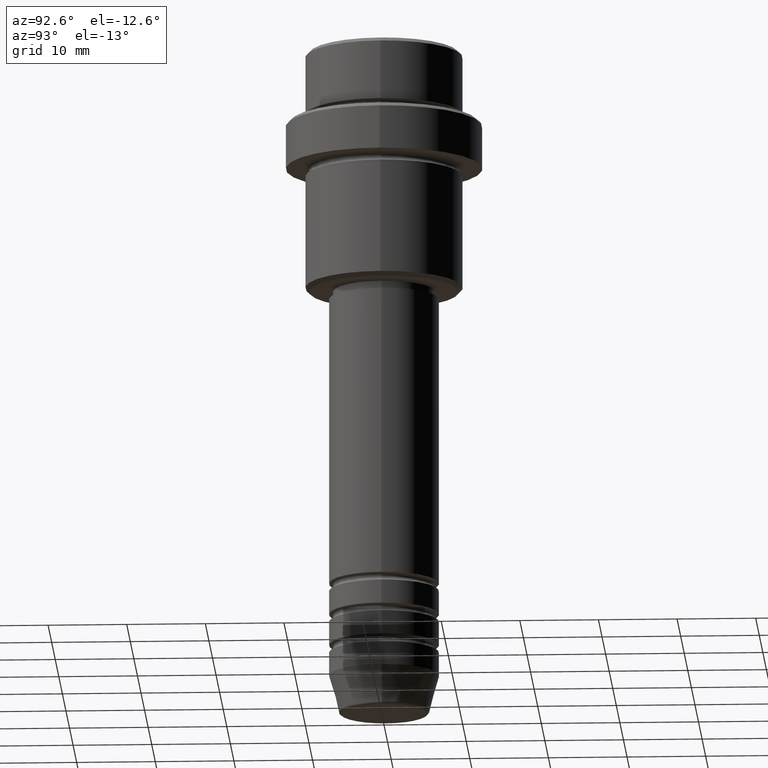
[diagram: clean part render]
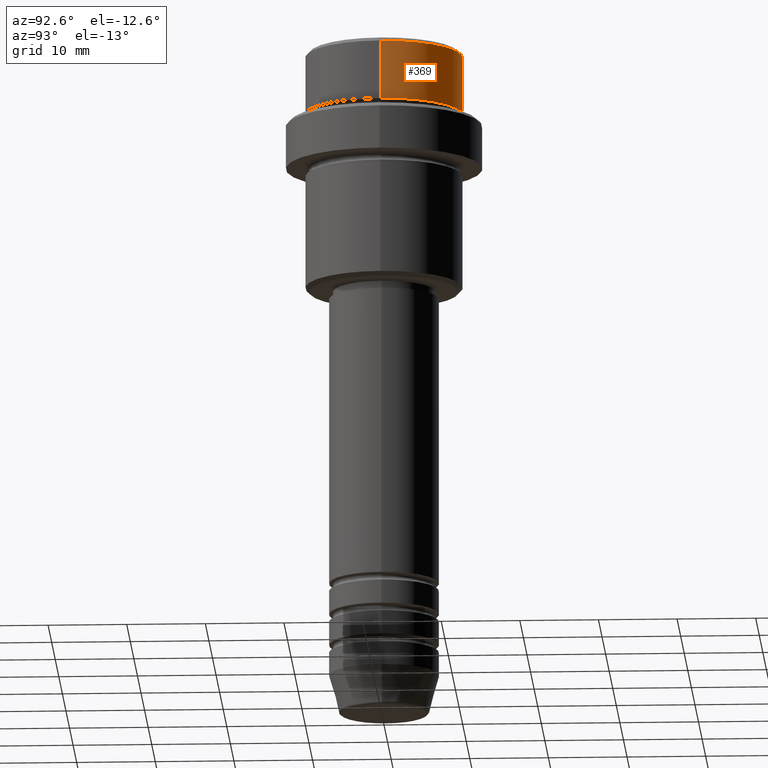
[diagram: same view with one face highlighted and labeled with its STEP entity id]
A machine part, auxiliary view. The second image highlights one B-rep face of the part: STEP entity #369.
In plain terms, the highlighted cylindrical surface (partial cylindrical patch) has radius 10 mm, axis along (-0, -0, 1).
Its self-contained STEP definition (entity closure, byte-faithful):
#5 = CIRCLE ( 'NONE', #946, 9.999999999999998224 ) ;
#68 = CARTESIAN_POINT ( 'NONE',  ( 0.000000000000000000, 0.000000000000000000, -0.5000000000000108802 ) ) ;
#80 = DIRECTION ( 'NONE',  ( -0.000000000000000000, -0.000000000000000000, 1.000000000000000000 ) ) ;
#170 = FACE_OUTER_BOUND ( 'NONE', #1251, .T. ) ;
#202 = VERTEX_POINT ( 'NONE', #982 ) ;
#244 = VERTEX_POINT ( 'NONE', #810 ) ;
#252 = LINE ( 'NONE', #694, #1171 ) ;
#269 = CIRCLE ( 'NONE', #608, 9.999999999999998224 ) ;
#275 = VERTEX_POINT ( 'NONE', #484 ) ;
#312 = ORIENTED_EDGE ( 'NONE', *, *, #392, .T. ) ;
#330 = VERTEX_POINT ( 'NONE', #478 ) ;
#369 = ADVANCED_FACE ( 'NONE', ( #170 ), #824, .T. ) ;
#392 = EDGE_CURVE ( 'NONE', #244, #330, #5, .T. ) ;
#449 = DIRECTION ( 'NONE',  ( -0.000000000000000000, -0.000000000000000000, 1.000000000000000000 ) ) ;
#478 = CARTESIAN_POINT ( 'NONE',  ( 9.999999999999998224, 0.000000000000000000, -0.5000000000000108802 ) ) ;
#484 = CARTESIAN_POINT ( 'NONE',  ( -9.999999999999998224, 1.224646799147353059E-15, -7.999999999999998224 ) ) ;
#503 = ORIENTED_EDGE ( 'NONE', *, *, #953, .T. ) ;
#513 = DIRECTION ( 'NONE',  ( -0.000000000000000000, -0.000000000000000000, 1.000000000000000000 ) ) ;
#543 = DIRECTION ( 'NONE',  ( 1.000000000000000000, 0.000000000000000000, 0.000000000000000000 ) ) ;
#549 = DIRECTION ( 'NONE',  ( 1.000000000000000000, 0.000000000000000000, 0.000000000000000000 ) ) ;
#608 = AXIS2_PLACEMENT_3D ( 'NONE', #1068, #449, #549 ) ;
#694 = CARTESIAN_POINT ( 'NONE',  ( 9.999999999999998224, 0.000000000000000000, 0.000000000000000000 ) ) ;
#723 = DIRECTION ( 'NONE',  ( 1.000000000000000000, 0.000000000000000000, 0.000000000000000000 ) ) ;
#725 = AXIS2_PLACEMENT_3D ( 'NONE', #1240, #513, #543 ) ;
#738 = DIRECTION ( 'NONE',  ( 0.000000000000000000, 0.000000000000000000, -1.000000000000000000 ) ) ;
#804 = ORIENTED_EDGE ( 'NONE', *, *, #849, .F. ) ;
#810 = CARTESIAN_POINT ( 'NONE',  ( -9.999999999999998224, 1.224646799147353059E-15, -0.5000000000000108802 ) ) ;
#824 = CYLINDRICAL_SURFACE ( 'NONE', #725, 9.999999999999998224 ) ;
#849 = EDGE_CURVE ( 'NONE', #202, #330, #252, .T. ) ;
#946 = AXIS2_PLACEMENT_3D ( 'NONE', #68, #738, #723 ) ;
#953 = EDGE_CURVE ( 'NONE', #275, #244, #1370, .T. ) ;
#962 = CARTESIAN_POINT ( 'NONE',  ( -9.999999999999998224, 1.224646799147353059E-15, 0.000000000000000000 ) ) ;
#982 = CARTESIAN_POINT ( 'NONE',  ( 9.999999999999998224, 0.000000000000000000, -7.999999999999998224 ) ) ;
#1048 = EDGE_CURVE ( 'NONE', #202, #275, #269, .T. ) ;
#1068 = CARTESIAN_POINT ( 'NONE',  ( 0.000000000000000000, 0.000000000000000000, -7.999999999999998224 ) ) ;
#1115 = DIRECTION ( 'NONE',  ( -0.000000000000000000, -0.000000000000000000, 1.000000000000000000 ) ) ;
#1171 = VECTOR ( 'NONE', #1115, 1000.000000000000000 ) ;
#1197 = VECTOR ( 'NONE', #80, 1000.000000000000000 ) ;
#1240 = CARTESIAN_POINT ( 'NONE',  ( 0.000000000000000000, 0.000000000000000000, 0.000000000000000000 ) ) ;
#1251 = EDGE_LOOP ( 'NONE', ( #1354, #503, #312, #804 ) ) ;
#1354 = ORIENTED_EDGE ( 'NONE', *, *, #1048, .T. ) ;
#1370 = LINE ( 'NONE', #962, #1197 ) ;